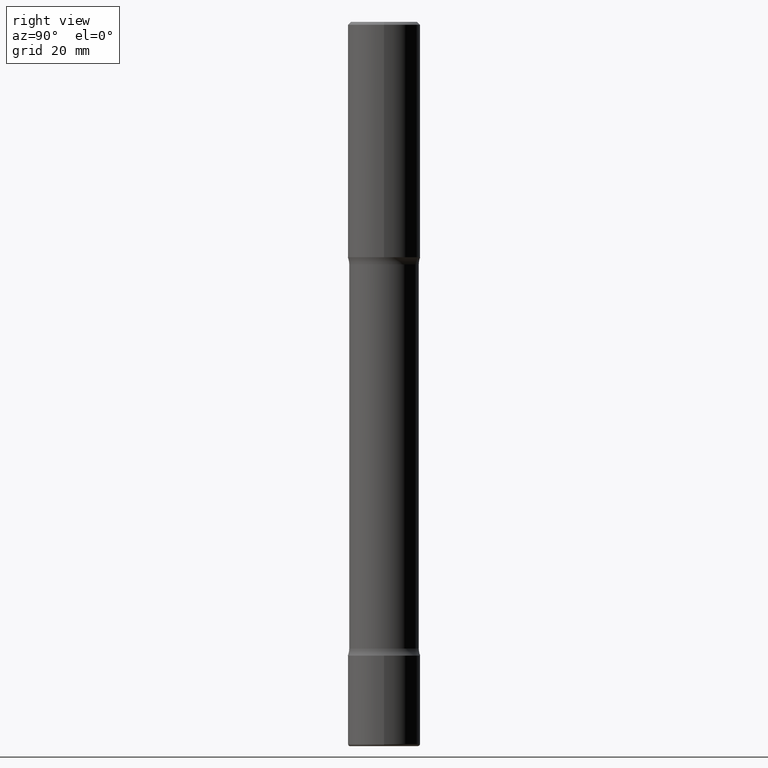
[diagram: clean part render]
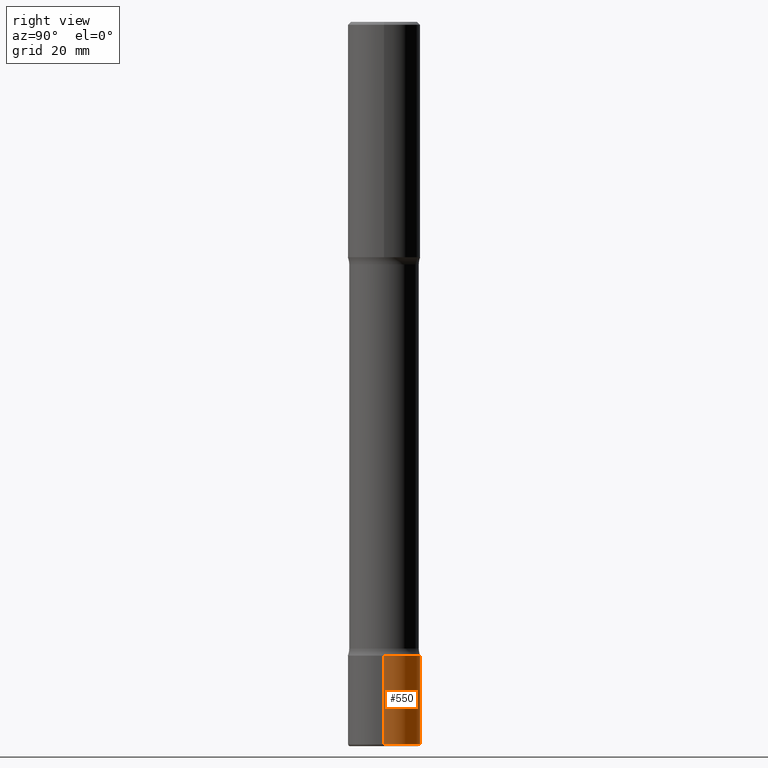
[diagram: same view with one face highlighted and labeled with its STEP entity id]
A machine part, right view. The second image highlights one B-rep face of the part: STEP entity #550.
In plain terms, the highlighted cylindrical surface (edge-blend (fillet) strip) has radius 6.35 mm, axis along (-0, 0, 1).
Its self-contained STEP definition (entity closure, byte-faithful):
#11 = EDGE_CURVE ( 'NONE', #501, #197, #274, .T. ) ;
#18 = ORIENTED_EDGE ( 'NONE', *, *, #544, .F. ) ;
#22 = DIRECTION ( 'NONE',  ( -2.445468806185136877E-29, 3.491481338843145188E-15, 1.000000000000000000 ) ) ;
#55 = CARTESIAN_POINT ( 'NONE',  ( 0.2500000000000003886, -1.915077514355464672E-14, -4.984999999999999432 ) ) ;
#78 = ORIENTED_EDGE ( 'NONE', *, *, #11, .T. ) ;
#93 = VERTEX_POINT ( 'NONE', #328 ) ;
#110 = EDGE_LOOP ( 'NONE', ( #78, #540, #227, #18 ) ) ;
#116 = CARTESIAN_POINT ( 'NONE',  ( 0.000000000000000000, 0.000000000000000000, 0.000000000000000000 ) ) ;
#131 = CARTESIAN_POINT ( 'NONE',  ( -0.2500000000000003886, -1.562867763473282642E-14, -4.984999999999999432 ) ) ;
#138 = DIRECTION ( 'NONE',  ( -2.445468806185136597E-29, 3.491481338843145583E-15, 1.000000000000000000 ) ) ;
#152 = EDGE_CURVE ( 'NONE', #93, #457, #415, .T. ) ;
#155 = DIRECTION ( 'NONE',  ( -2.445468806185136597E-29, 3.491481338843145583E-15, 1.000000000000000000 ) ) ;
#161 = CYLINDRICAL_SURFACE ( 'NONE', #301, 0.2500000000000002220 ) ;
#186 = DIRECTION ( 'NONE',  ( 1.000000000000000000, -6.982962677686264344E-15, 0.000000000000000000 ) ) ;
#192 = LINE ( 'NONE', #435, #399 ) ;
#197 = VERTEX_POINT ( 'NONE', #131 ) ;
#205 = VECTOR ( 'NONE', #22, 39.37007874015748143 ) ;
#227 = ORIENTED_EDGE ( 'NONE', *, *, #152, .F. ) ;
#238 = AXIS2_PLACEMENT_3D ( 'NONE', #467, #138, #186 ) ;
#246 = CARTESIAN_POINT ( 'NONE',  ( 0.2500000000000002220, -1.745740669421568255E-15, 1.219044193948984929E-29 ) ) ;
#274 = CIRCLE ( 'NONE', #339, 0.2500000000000001665 ) ;
#301 = AXIS2_PLACEMENT_3D ( 'NONE', #116, #155, #375 ) ;
#310 = DIRECTION ( 'NONE',  ( -2.445468806185136877E-29, 3.491481338843145188E-15, 1.000000000000000000 ) ) ;
#328 = CARTESIAN_POINT ( 'NONE',  ( 0.2500000000000002220, -1.702097152686033033E-14, -4.375000000000000000 ) ) ;
#334 = CARTESIAN_POINT ( 'NONE',  ( 1.219066199883290567E-28, -1.740503447413308005E-14, -4.984999999999999432 ) ) ;
#339 = AXIS2_PLACEMENT_3D ( 'NONE', #334, #487, #448 ) ;
#352 = CARTESIAN_POINT ( 'NONE',  ( -0.2500000000000002220, -1.456377582638566980E-14, -4.375000000000000000 ) ) ;
#375 = DIRECTION ( 'NONE',  ( 1.000000000000000000, -6.982962677686266711E-15, 4.876176775795935232E-29 ) ) ;
#399 = VECTOR ( 'NONE', #310, 39.37007874015748143 ) ;
#415 = CIRCLE ( 'NONE', #238, 0.2500000000000002220 ) ;
#435 = CARTESIAN_POINT ( 'NONE',  ( -0.2500000000000002220, 1.776356839400252042E-15, -1.229733772563727566E-29 ) ) ;
#445 = LINE ( 'NONE', #246, #205 ) ;
#448 = DIRECTION ( 'NONE',  ( 1.000000000000000000, -6.982962677686265922E-15, 0.000000000000000000 ) ) ;
#451 = EDGE_CURVE ( 'NONE', #197, #457, #192, .T. ) ;
#457 = VERTEX_POINT ( 'NONE', #352 ) ;
#467 = CARTESIAN_POINT ( 'NONE',  ( 1.069892602705997261E-28, -1.527523085743876365E-14, -4.375000000000000000 ) ) ;
#487 = DIRECTION ( 'NONE',  ( -2.445468806185136597E-29, 3.491481338843145583E-15, 1.000000000000000000 ) ) ;
#501 = VERTEX_POINT ( 'NONE', #55 ) ;
#540 = ORIENTED_EDGE ( 'NONE', *, *, #451, .T. ) ;
#544 = EDGE_CURVE ( 'NONE', #501, #93, #445, .T. ) ;
#547 = FACE_OUTER_BOUND ( 'NONE', #110, .T. ) ;
#550 = ADVANCED_FACE ( 'NONE', ( #547 ), #161, .T. ) ;